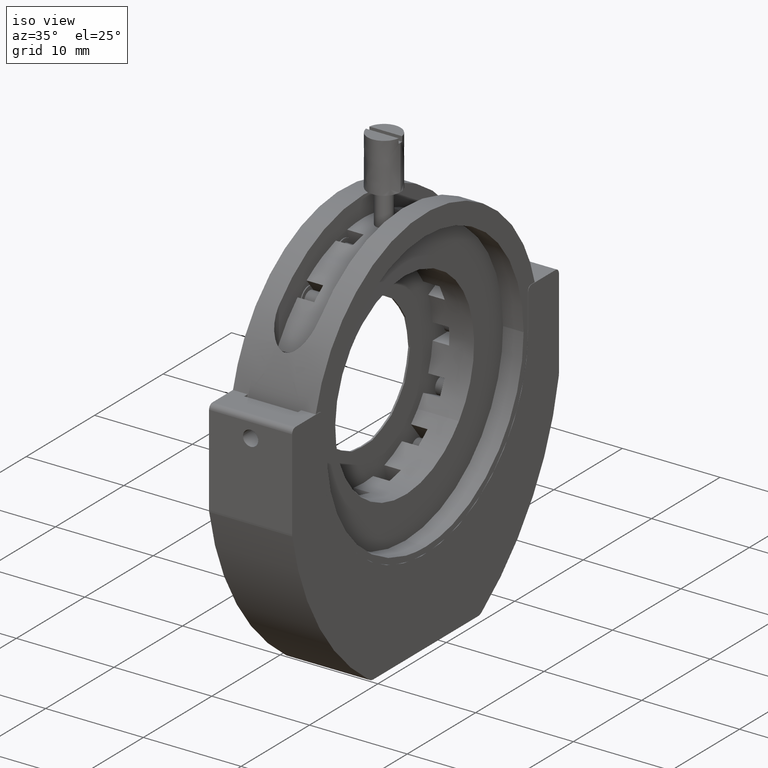
[diagram: clean part render]
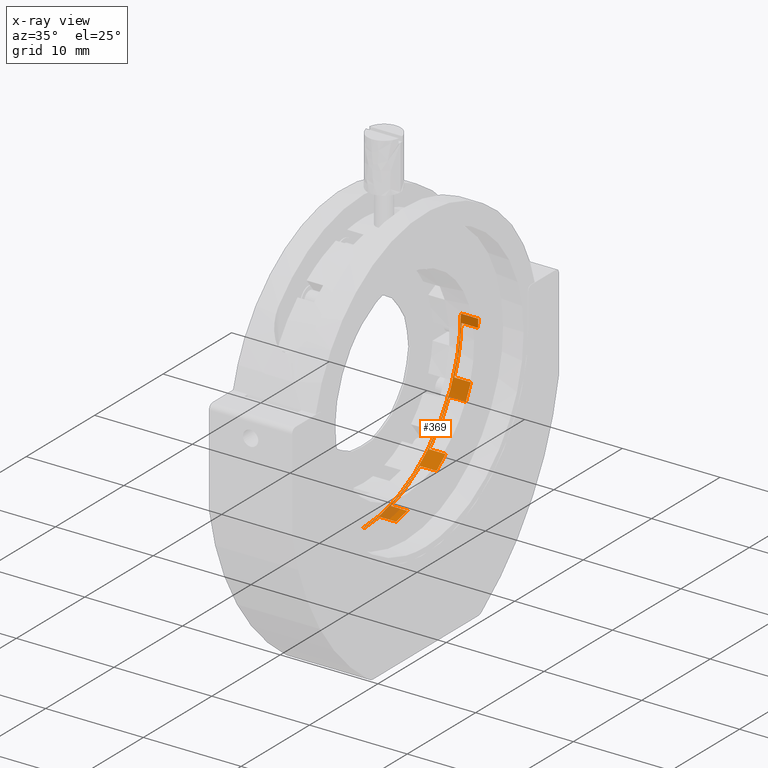
[diagram: x-ray — body ghosted, one internal face saturated and labeled with its STEP entity id]
A machine part, iso view, then the same camera in x-ray: the body is ghosted and one INTERNAL B-rep face — a face not visible from any outside direction — is saturated and labeled: STEP entity #369.
In plain terms, the highlighted face is a freeform B-spline surface patch.
Its self-contained STEP definition (entity closure, byte-faithful):
#369=ADVANCED_FACE('',(#691),#5631,.T.);
#691=FACE_OUTER_BOUND('',#1040,.T.);
#1040=EDGE_LOOP('',(#2857,#2858,#2859,#2860,#2861,#2862,#2863,#2864,#2865,
#2866,#2867,#2868,#2869,#2870,#2871,#2872,#2873,#2874));
#2857=ORIENTED_EDGE('',*,*,#3883,.F.);
#2858=ORIENTED_EDGE('',*,*,#3869,.T.);
#2859=ORIENTED_EDGE('',*,*,#3901,.F.);
#2860=ORIENTED_EDGE('',*,*,#3898,.T.);
#2861=ORIENTED_EDGE('',*,*,#3897,.F.);
#2862=ORIENTED_EDGE('',*,*,#3896,.T.);
#2863=ORIENTED_EDGE('',*,*,#3895,.F.);
#2864=ORIENTED_EDGE('',*,*,#3894,.F.);
#2865=ORIENTED_EDGE('',*,*,#3893,.T.);
#2866=ORIENTED_EDGE('',*,*,#3892,.T.);
#2867=ORIENTED_EDGE('',*,*,#3891,.F.);
#2868=ORIENTED_EDGE('',*,*,#3890,.F.);
#2869=ORIENTED_EDGE('',*,*,#3889,.F.);
#2870=ORIENTED_EDGE('',*,*,#3888,.T.);
#2871=ORIENTED_EDGE('',*,*,#3887,.F.);
#2872=ORIENTED_EDGE('',*,*,#3886,.F.);
#2873=ORIENTED_EDGE('',*,*,#3885,.F.);
#2874=ORIENTED_EDGE('',*,*,#3884,.T.);
#3869=EDGE_CURVE('',#5426,#5482,#4341,.T.);
#3883=EDGE_CURVE('',#5426,#5340,#4918,.T.);
#3884=EDGE_CURVE('',#5339,#5340,#4353,.T.);
#3885=EDGE_CURVE('',#5339,#5367,#4919,.T.);
#3886=EDGE_CURVE('',#5367,#5370,#4354,.T.);
#3887=EDGE_CURVE('',#5370,#5371,#4920,.T.);
#3888=EDGE_CURVE('',#5373,#5371,#4355,.T.);
#3889=EDGE_CURVE('',#5373,#5409,#4921,.T.);
#3890=EDGE_CURVE('',#5409,#5412,#4356,.T.);
#3891=EDGE_CURVE('',#5412,#5413,#4922,.T.);
#3892=EDGE_CURVE('',#5415,#5413,#4357,.T.);
#3893=EDGE_CURVE('',#5431,#5415,#4923,.T.);
#3894=EDGE_CURVE('',#5431,#5430,#4358,.T.);
#3895=EDGE_CURVE('',#5430,#5445,#4924,.T.);
#3896=EDGE_CURVE('',#5446,#5445,#4359,.T.);
#3897=EDGE_CURVE('',#5446,#5389,#4925,.T.);
#3898=EDGE_CURVE('',#5483,#5389,#4360,.T.);
#3901=EDGE_CURVE('',#5483,#5482,#4926,.T.);
#4341=(
BOUNDED_CURVE()
B_SPLINE_CURVE(2,(#12395,#12396,#12397),.UNSPECIFIED.,.F.,.F.)
B_SPLINE_CURVE_WITH_KNOTS((3,3),(-90.3812040340449,-67.8982104090866),
 .UNSPECIFIED.)
CURVE()
GEOMETRIC_REPRESENTATION_ITEM()
RATIONAL_B_SPLINE_CURVE((1.,0.709861742118741,1.))
REPRESENTATION_ITEM('')
);
#4353=(
BOUNDED_CURVE()
B_SPLINE_CURVE(2,(#12439,#12440,#12441),.UNSPECIFIED.,.F.,.F.)
B_SPLINE_CURVE_WITH_KNOTS((3,3),(-2.26895017497374,0.),.UNSPECIFIED.)
CURVE()
GEOMETRIC_REPRESENTATION_ITEM()
RATIONAL_B_SPLINE_CURVE((1.,0.996891589980356,1.))
REPRESENTATION_ITEM('')
);
#4354=(
BOUNDED_CURVE()
B_SPLINE_CURVE(2,(#12444,#12445,#12446),.UNSPECIFIED.,.F.,.F.)
B_SPLINE_CURVE_WITH_KNOTS((3,3),(0.,1.69328517109287),.UNSPECIFIED.)
CURVE()
GEOMETRIC_REPRESENTATION_ITEM()
RATIONAL_B_SPLINE_CURVE((1.,0.998268396969243,1.))
REPRESENTATION_ITEM('')
);
#4355=(
BOUNDED_CURVE()
B_SPLINE_CURVE(2,(#12449,#12450,#12451),.UNSPECIFIED.,.F.,.F.)
B_SPLINE_CURVE_WITH_KNOTS((3,3),(-4.76251511705313,0.),.UNSPECIFIED.)
CURVE()
GEOMETRIC_REPRESENTATION_ITEM()
RATIONAL_B_SPLINE_CURVE((1.,0.986329190757631,1.))
REPRESENTATION_ITEM('')
);
#4356=(
BOUNDED_CURVE()
B_SPLINE_CURVE(2,(#12454,#12455,#12456),.UNSPECIFIED.,.F.,.F.)
B_SPLINE_CURVE_WITH_KNOTS((3,3),(0.,1.69328517109297),.UNSPECIFIED.)
CURVE()
GEOMETRIC_REPRESENTATION_ITEM()
RATIONAL_B_SPLINE_CURVE((1.,0.998268396969243,1.))
REPRESENTATION_ITEM('')
);
#4357=(
BOUNDED_CURVE()
B_SPLINE_CURVE(2,(#12459,#12460,#12461),.UNSPECIFIED.,.F.,.F.)
B_SPLINE_CURVE_WITH_KNOTS((3,3),(-4.76251511705311,0.),.UNSPECIFIED.)
CURVE()
GEOMETRIC_REPRESENTATION_ITEM()
RATIONAL_B_SPLINE_CURVE((1.,0.986329190757634,1.))
REPRESENTATION_ITEM('')
);
#4358=(
BOUNDED_CURVE()
B_SPLINE_CURVE(2,(#12464,#12465,#12466),.UNSPECIFIED.,.F.,.F.)
B_SPLINE_CURVE_WITH_KNOTS((3,3),(0.,1.69328517109298),.UNSPECIFIED.)
CURVE()
GEOMETRIC_REPRESENTATION_ITEM()
RATIONAL_B_SPLINE_CURVE((1.,0.998268396969244,1.))
REPRESENTATION_ITEM('')
);
#4359=(
BOUNDED_CURVE()
B_SPLINE_CURVE(2,(#12469,#12470,#12471),.UNSPECIFIED.,.F.,.F.)
B_SPLINE_CURVE_WITH_KNOTS((3,3),(-4.76251511705311,0.),.UNSPECIFIED.)
CURVE()
GEOMETRIC_REPRESENTATION_ITEM()
RATIONAL_B_SPLINE_CURVE((1.,0.986329190757632,1.))
REPRESENTATION_ITEM('')
);
#4360=(
BOUNDED_CURVE()
B_SPLINE_CURVE(2,(#12474,#12475,#12476),.UNSPECIFIED.,.F.,.F.)
B_SPLINE_CURVE_WITH_KNOTS((3,3),(-0.846642585546436,0.),.UNSPECIFIED.)
CURVE()
GEOMETRIC_REPRESENTATION_ITEM()
RATIONAL_B_SPLINE_CURVE((1.,0.999567005500192,1.))
REPRESENTATION_ITEM('')
);
#4918=B_SPLINE_CURVE_WITH_KNOTS('',1,(#12437,#12438),.UNSPECIFIED.,.F.,
 .F.,(2,2),(-0.0999999999999996,0.),.UNSPECIFIED.);
#4919=B_SPLINE_CURVE_WITH_KNOTS('',1,(#12442,#12443),.UNSPECIFIED.,.F.,
 .F.,(2,2),(0.,1.69230769230769),.UNSPECIFIED.);
#4920=B_SPLINE_CURVE_WITH_KNOTS('',1,(#12447,#12448),.UNSPECIFIED.,.F.,
 .F.,(2,2),(0.,1.69230769230769),.UNSPECIFIED.);
#4921=B_SPLINE_CURVE_WITH_KNOTS('',1,(#12452,#12453),.UNSPECIFIED.,.F.,
 .F.,(2,2),(0.,1.69230769230769),.UNSPECIFIED.);
#4922=B_SPLINE_CURVE_WITH_KNOTS('',1,(#12457,#12458),.UNSPECIFIED.,.F.,
 .F.,(2,2),(0.,1.69230769230769),.UNSPECIFIED.);
#4923=B_SPLINE_CURVE_WITH_KNOTS('',1,(#12462,#12463),.UNSPECIFIED.,.F.,
 .F.,(2,2),(-1.69230769230769,0.),.UNSPECIFIED.);
#4924=B_SPLINE_CURVE_WITH_KNOTS('',1,(#12467,#12468),.UNSPECIFIED.,.F.,
 .F.,(2,2),(0.,1.69230769230769),.UNSPECIFIED.);
#4925=B_SPLINE_CURVE_WITH_KNOTS('',1,(#12472,#12473),.UNSPECIFIED.,.F.,
 .F.,(2,2),(0.,1.6923076923077),.UNSPECIFIED.);
#4926=B_SPLINE_CURVE_WITH_KNOTS('',1,(#12483,#12484),.UNSPECIFIED.,.F.,
 .F.,(2,2),(0.299230769230775,2.09153846153848),.UNSPECIFIED.);
#5339=VERTEX_POINT('',#9412);
#5340=VERTEX_POINT('',#9413);
#5367=VERTEX_POINT('',#9440);
#5370=VERTEX_POINT('',#9443);
#5371=VERTEX_POINT('',#9444);
#5373=VERTEX_POINT('',#9446);
#5389=VERTEX_POINT('',#9462);
#5409=VERTEX_POINT('',#9482);
#5412=VERTEX_POINT('',#9485);
#5413=VERTEX_POINT('',#9486);
#5415=VERTEX_POINT('',#9488);
#5426=VERTEX_POINT('',#9499);
#5430=VERTEX_POINT('',#9503);
#5431=VERTEX_POINT('',#9504);
#5445=VERTEX_POINT('',#9518);
#5446=VERTEX_POINT('',#9519);
#5482=VERTEX_POINT('',#9555);
#5483=VERTEX_POINT('',#9556);
#5631=(
BOUNDED_SURFACE()
B_SPLINE_SURFACE(2,1,((#8946,#8947),(#8948,#8949),(#8950,#8951),(#8952,
#8953),(#8954,#8955),(#8956,#8957),(#8958,#8959),(#8960,#8961),(#8962,#8963)),
 .UNSPECIFIED.,.T.,.F.,.F.)
B_SPLINE_SURFACE_WITH_KNOTS((3,2,2,2,3),(2,2),(0.,1.5707963267949,3.14159265358979,
4.71238898038469,6.28318530717959),(0.,2.39076923076925),.UNSPECIFIED.)
GEOMETRIC_REPRESENTATION_ITEM()
RATIONAL_B_SPLINE_SURFACE(((1.,1.),(0.707106781186548,0.707106781186548),
(1.,1.),(0.707106781186548,0.707106781186548),(1.,1.),(0.707106781186548,
0.707106781186548),(1.,1.),(0.707106781186548,0.707106781186548),(1.,1.)))
REPRESENTATION_ITEM('')
SURFACE()
);
#8946=CARTESIAN_POINT('',(15.9492307692308,30.8846153846154,2.52326440229894));
#8947=CARTESIAN_POINT('',(13.5584615384615,30.8846153846154,2.52326440229894));
#8948=CARTESIAN_POINT('',(15.9492307692308,30.8846153846154,-11.8613509823165));
#8949=CARTESIAN_POINT('',(13.5584615384615,30.8846153846154,-11.8613509823165));
#8950=CARTESIAN_POINT('',(15.9492307692308,16.5,-11.8613509823165));
#8951=CARTESIAN_POINT('',(13.5584615384615,16.5,-11.8613509823165));
#8952=CARTESIAN_POINT('',(15.9492307692308,2.1153846153846,-11.8613509823165));
#8953=CARTESIAN_POINT('',(13.5584615384615,2.1153846153846,-11.8613509823165));
#8954=CARTESIAN_POINT('',(15.9492307692308,2.1153846153846,2.52326440229894));
#8955=CARTESIAN_POINT('',(13.5584615384615,2.1153846153846,2.52326440229894));
#8956=CARTESIAN_POINT('',(15.9492307692308,2.1153846153846,16.9078797869143));
#8957=CARTESIAN_POINT('',(13.5584615384615,2.1153846153846,16.9078797869143));
#8958=CARTESIAN_POINT('',(15.9492307692308,16.5,16.9078797869143));
#8959=CARTESIAN_POINT('',(13.5584615384615,16.5,16.9078797869143));
#8960=CARTESIAN_POINT('',(15.9492307692308,30.8846153846154,16.9078797869143));
#8961=CARTESIAN_POINT('',(13.5584615384615,30.8846153846154,16.9078797869143));
#8962=CARTESIAN_POINT('',(15.9492307692308,30.8846153846154,2.52326440229894));
#8963=CARTESIAN_POINT('',(13.5584615384615,30.8846153846154,2.52326440229894));
#9412=CARTESIAN_POINT('',(13.9576923076923,18.8703963972392,-11.6647016493686));
#9413=CARTESIAN_POINT('',(13.9576923076923,16.6123062425786,-11.860912566551));
#9440=CARTESIAN_POINT('',(15.65,18.8703963972392,-11.6647016493686));
#9443=CARTESIAN_POINT('',(15.65,20.5202744024699,-11.2881277611348));
#9444=CARTESIAN_POINT('',(13.9576923076923,20.5202744024699,-11.2881277611348));
#9446=CARTESIAN_POINT('',(13.9576923076923,24.791581119471,-9.23117485708497));
#9462=CARTESIAN_POINT('',(15.65,30.8597069410191,1.67711055614514));
#9482=CARTESIAN_POINT('',(15.65,24.791581119471,-9.23117485708496));
#9485=CARTESIAN_POINT('',(15.65,26.11468055134,-8.17603826932402));
#9486=CARTESIAN_POINT('',(13.9576923076923,26.11468055134,-8.17603826932402));
#9488=CARTESIAN_POINT('',(13.9576923076923,29.0705165114226,-4.46953721074329));
#9499=CARTESIAN_POINT('',(13.8576923076923,16.6123062425786,-11.860912566551));
#9503=CARTESIAN_POINT('',(15.65,29.8047813006985,-2.94482066506226));
#9504=CARTESIAN_POINT('',(15.65,29.0705165114226,-4.46953721074329));
#9518=CARTESIAN_POINT('',(13.9576923076923,29.8047813006985,-2.94482066506226));
#9519=CARTESIAN_POINT('',(13.9576923076923,30.8597069410191,1.67711055614513));
#9555=CARTESIAN_POINT('',(13.8576923076923,30.8846153846154,2.52326440229894));
#9556=CARTESIAN_POINT('',(15.65,30.8846153846154,2.52326440229894));
#12395=CARTESIAN_POINT('',(13.8576923076923,16.6123062425786,-11.860912566551));
#12396=CARTESIAN_POINT('',(13.8576923076923,30.8846153846154,-11.7494797458805));
#12397=CARTESIAN_POINT('',(13.8576923076923,30.8846153846154,2.52326440229894));
#12437=CARTESIAN_POINT('',(13.8576923076923,16.6123062425786,-11.860912566551));
#12438=CARTESIAN_POINT('',(13.9576923076923,16.6123062425786,-11.860912566551));
#12439=CARTESIAN_POINT('',(13.9576923076923,18.8703963972392,-11.6647016493686));
#12440=CARTESIAN_POINT('',(13.9576923076923,17.7491047099855,-11.8520368717705));
#12441=CARTESIAN_POINT('',(13.9576923076923,16.6123062425786,-11.860912566551));
#12442=CARTESIAN_POINT('',(13.9576923076923,18.8703963972392,-11.6647016493686));
#12443=CARTESIAN_POINT('',(15.65,18.8703963972392,-11.6647016493686));
#12444=CARTESIAN_POINT('',(15.65,18.8703963972392,-11.6647016493686));
#12445=CARTESIAN_POINT('',(15.65,19.7064303144374,-11.5250247021529));
#12446=CARTESIAN_POINT('',(15.65,20.5202744024699,-11.2881277611348));
#12447=CARTESIAN_POINT('',(15.65,20.5202744024699,-11.2881277611348));
#12448=CARTESIAN_POINT('',(13.9576923076923,20.5202744024699,-11.2881277611348));
#12449=CARTESIAN_POINT('',(13.9576923076923,24.791581119471,-9.23117485708496));
#12450=CARTESIAN_POINT('',(13.9576923076923,22.8277562575744,-10.6164568588488));
#12451=CARTESIAN_POINT('',(13.9576923076923,20.5202744024699,-11.2881277611348));
#12452=CARTESIAN_POINT('',(13.9576923076923,24.791581119471,-9.23117485708497));
#12453=CARTESIAN_POINT('',(15.65,24.791581119471,-9.23117485708496));
#12454=CARTESIAN_POINT('',(15.65,24.791581119471,-9.23117485708496));
#12455=CARTESIAN_POINT('',(15.65,25.4842180952507,-8.74258875405694));
#12456=CARTESIAN_POINT('',(15.65,26.11468055134,-8.17603826932403));
#12457=CARTESIAN_POINT('',(15.65,26.11468055134,-8.17603826932402));
#12458=CARTESIAN_POINT('',(13.9576923076923,26.11468055134,-8.17603826932402));
#12459=CARTESIAN_POINT('',(13.9576923076923,29.0705165114226,-4.46953721074329));
#12460=CARTESIAN_POINT('',(13.9576923076923,27.9022227834985,-6.56970484164971));
#12461=CARTESIAN_POINT('',(13.9576923076923,26.11468055134,-8.17603826932402));
#12462=CARTESIAN_POINT('',(15.65,29.0705165114226,-4.46953721074329));
#12463=CARTESIAN_POINT('',(13.9576923076923,29.0705165114226,-4.46953721074329));
#12464=CARTESIAN_POINT('',(15.65,29.0705165114226,-4.46953721074329));
#12465=CARTESIAN_POINT('',(15.65,29.4825712980955,-3.72881242172292));
#12466=CARTESIAN_POINT('',(15.65,29.8047813006985,-2.94482066506226));
#12467=CARTESIAN_POINT('',(15.65,29.8047813006985,-2.94482066506226));
#12468=CARTESIAN_POINT('',(13.9576923076923,29.8047813006985,-2.94482066506226));
#12469=CARTESIAN_POINT('',(13.9576923076923,30.8597069410191,1.67711055614513));
#12470=CARTESIAN_POINT('',(13.9576923076923,30.7183392480652,-0.721978747737256));
#12471=CARTESIAN_POINT('',(13.9576923076923,29.8047813006985,-2.94482066506226));
#12472=CARTESIAN_POINT('',(13.9576923076923,30.8597069410191,1.67711055614513));
#12473=CARTESIAN_POINT('',(15.65,30.8597069410191,1.67711055614514));
#12474=CARTESIAN_POINT('',(15.65,30.8846153846154,2.52326440229894));
#12475=CARTESIAN_POINT('',(15.65,30.8846153846154,2.09982086116245));
#12476=CARTESIAN_POINT('',(15.65,30.8597069410191,1.67711055614514));
#12483=CARTESIAN_POINT('',(15.65,30.8846153846154,2.52326440229894));
#12484=CARTESIAN_POINT('',(13.8576923076923,30.8846153846154,2.52326440229894));